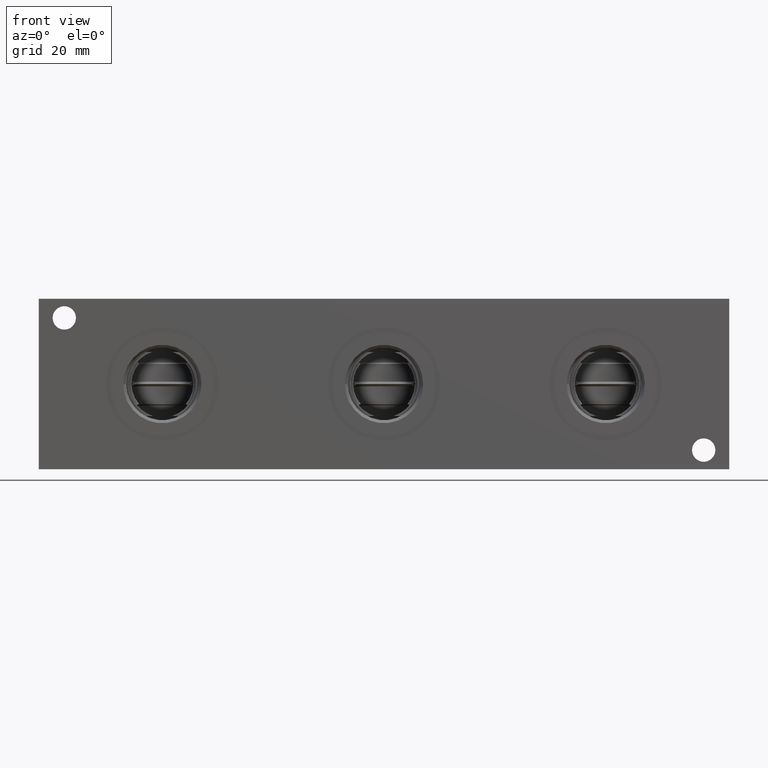
[diagram: clean part render]
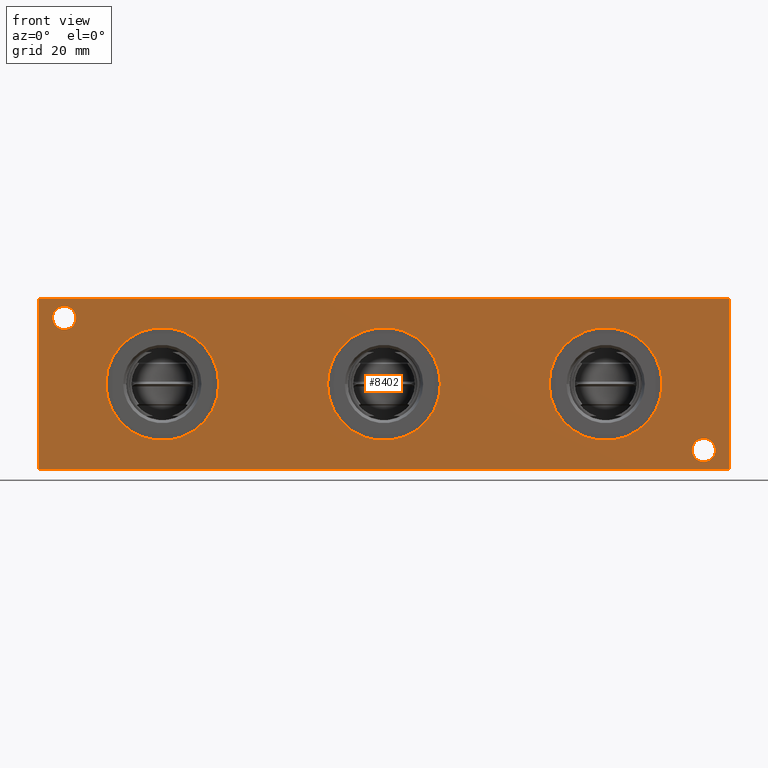
[diagram: same view with one face highlighted and labeled with its STEP entity id]
A machine part, front view. The second image highlights one B-rep face of the part: STEP entity #8402.
In plain terms, the highlighted planar face has unit normal (0, -1, 0).
Its self-contained STEP definition (entity closure, byte-faithful):
#240=CIRCLE('',#8802,21.0185);
#241=CIRCLE('',#8803,21.0185);
#260=CIRCLE('',#8832,21.0185);
#261=CIRCLE('',#8833,21.0185);
#290=CIRCLE('',#8886,4.3688);
#291=CIRCLE('',#8887,4.3688);
#293=CIRCLE('',#8895,4.3688);
#294=CIRCLE('',#8896,4.3688);
#311=CIRCLE('',#8936,21.0185);
#312=CIRCLE('',#8937,21.0185);
#375=FACE_BOUND('',#1611,.T.);
#376=FACE_BOUND('',#1612,.T.);
#377=FACE_BOUND('',#1613,.T.);
#378=FACE_BOUND('',#1614,.T.);
#379=FACE_BOUND('',#1615,.T.);
#1134=FACE_OUTER_BOUND('',#1610,.T.);
#1610=EDGE_LOOP('',(#7396,#7397,#7398,#7399));
#1611=EDGE_LOOP('',(#7400,#7401));
#1612=EDGE_LOOP('',(#7402,#7403));
#1613=EDGE_LOOP('',(#7404,#7405));
#1614=EDGE_LOOP('',(#7406,#7407));
#1615=EDGE_LOOP('',(#7408,#7409));
#1908=LINE('',#12908,#2649);
#2357=LINE('',#14576,#3098);
#2362=LINE('',#14585,#3103);
#2363=LINE('',#14587,#3104);
#2649=VECTOR('',#9421,10.);
#3098=VECTOR('',#10828,10.);
#3103=VECTOR('',#10837,10.);
#3104=VECTOR('',#10840,10.);
#3411=VERTEX_POINT('',#12906);
#3412=VERTEX_POINT('',#12907);
#3786=VERTEX_POINT('',#14239);
#3787=VERTEX_POINT('',#14240);
#3806=VERTEX_POINT('',#14297);
#3807=VERTEX_POINT('',#14298);
#3834=VERTEX_POINT('',#14399);
#3835=VERTEX_POINT('',#14400);
#3839=VERTEX_POINT('',#14415);
#3840=VERTEX_POINT('',#14416);
#3853=VERTEX_POINT('',#14501);
#3854=VERTEX_POINT('',#14502);
#3876=VERTEX_POINT('',#14574);
#3878=VERTEX_POINT('',#14583);
#4338=EDGE_CURVE('',#3411,#3412,#1908,.T.);
#4898=EDGE_CURVE('',#3786,#3787,#240,.T.);
#4899=EDGE_CURVE('',#3787,#3786,#241,.T.);
#4926=EDGE_CURVE('',#3806,#3807,#260,.T.);
#4927=EDGE_CURVE('',#3807,#3806,#261,.T.);
#4974=EDGE_CURVE('',#3834,#3835,#290,.T.);
#4975=EDGE_CURVE('',#3835,#3834,#291,.T.);
#4983=EDGE_CURVE('',#3839,#3840,#293,.T.);
#4984=EDGE_CURVE('',#3840,#3839,#294,.T.);
#5018=EDGE_CURVE('',#3853,#3854,#311,.T.);
#5019=EDGE_CURVE('',#3854,#3853,#312,.T.);
#5054=EDGE_CURVE('',#3876,#3411,#2357,.T.);
#5059=EDGE_CURVE('',#3878,#3412,#2362,.T.);
#5060=EDGE_CURVE('',#3876,#3878,#2363,.T.);
#7396=ORIENTED_EDGE('',*,*,#5060,.T.);
#7397=ORIENTED_EDGE('',*,*,#5059,.T.);
#7398=ORIENTED_EDGE('',*,*,#4338,.F.);
#7399=ORIENTED_EDGE('',*,*,#5054,.F.);
#7400=ORIENTED_EDGE('',*,*,#4898,.T.);
#7401=ORIENTED_EDGE('',*,*,#4899,.T.);
#7402=ORIENTED_EDGE('',*,*,#4926,.T.);
#7403=ORIENTED_EDGE('',*,*,#4927,.T.);
#7404=ORIENTED_EDGE('',*,*,#4974,.T.);
#7405=ORIENTED_EDGE('',*,*,#4975,.T.);
#7406=ORIENTED_EDGE('',*,*,#4983,.T.);
#7407=ORIENTED_EDGE('',*,*,#4984,.T.);
#7408=ORIENTED_EDGE('',*,*,#5018,.T.);
#7409=ORIENTED_EDGE('',*,*,#5019,.T.);
#7662=PLANE('',#8977);
#8402=ADVANCED_FACE('',(#1134,#375,#376,#377,#378,#379),#7662,.T.);
#8802=AXIS2_PLACEMENT_3D('',#14241,#10439,#10440);
#8803=AXIS2_PLACEMENT_3D('',#14242,#10441,#10442);
#8832=AXIS2_PLACEMENT_3D('',#14299,#10507,#10508);
#8833=AXIS2_PLACEMENT_3D('',#14300,#10509,#10510);
#8886=AXIS2_PLACEMENT_3D('',#14401,#10627,#10628);
#8887=AXIS2_PLACEMENT_3D('',#14402,#10629,#10630);
#8895=AXIS2_PLACEMENT_3D('',#14417,#10647,#10648);
#8896=AXIS2_PLACEMENT_3D('',#14418,#10649,#10650);
#8936=AXIS2_PLACEMENT_3D('',#14503,#10738,#10739);
#8937=AXIS2_PLACEMENT_3D('',#14504,#10740,#10741);
#8977=AXIS2_PLACEMENT_3D('',#14586,#10838,#10839);
#9421=DIRECTION('',(1.,0.,0.));
#10439=DIRECTION('center_axis',(0.,1.,0.));
#10440=DIRECTION('ref_axis',(1.,0.,0.));
#10441=DIRECTION('center_axis',(0.,1.,0.));
#10442=DIRECTION('ref_axis',(1.,0.,0.));
#10507=DIRECTION('center_axis',(0.,1.,0.));
#10508=DIRECTION('ref_axis',(1.,0.,0.));
#10509=DIRECTION('center_axis',(0.,1.,0.));
#10510=DIRECTION('ref_axis',(1.,0.,0.));
#10627=DIRECTION('center_axis',(0.,1.,0.));
#10628=DIRECTION('ref_axis',(1.,0.,0.));
#10629=DIRECTION('center_axis',(0.,1.,0.));
#10630=DIRECTION('ref_axis',(1.,0.,0.));
#10647=DIRECTION('center_axis',(0.,1.,0.));
#10648=DIRECTION('ref_axis',(1.,0.,0.));
#10649=DIRECTION('center_axis',(0.,1.,0.));
#10650=DIRECTION('ref_axis',(1.,0.,0.));
#10738=DIRECTION('center_axis',(0.,1.,0.));
#10739=DIRECTION('ref_axis',(1.,0.,0.));
#10740=DIRECTION('center_axis',(0.,1.,0.));
#10741=DIRECTION('ref_axis',(1.,0.,0.));
#10828=DIRECTION('',(0.,0.,1.));
#10837=DIRECTION('',(0.,0.,1.));
#10838=DIRECTION('center_axis',(0.,-1.,0.));
#10839=DIRECTION('ref_axis',(1.,0.,0.));
#10840=DIRECTION('',(1.,0.,0.));
#12906=CARTESIAN_POINT('',(0.,0.,63.5));
#12907=CARTESIAN_POINT('',(257.175,0.,63.5));
#12908=CARTESIAN_POINT('',(0.,0.,63.5));
#14239=CARTESIAN_POINT('',(232.1433,0.,31.75));
#14240=CARTESIAN_POINT('',(190.1063,0.,31.75));
#14241=CARTESIAN_POINT('Origin',(211.1248,0.,31.75));
#14242=CARTESIAN_POINT('Origin',(211.1248,0.,31.75));
#14297=CARTESIAN_POINT('',(149.5933,0.,31.75));
#14298=CARTESIAN_POINT('',(107.5563,0.,31.75));
#14299=CARTESIAN_POINT('Origin',(128.5748,0.,31.75));
#14300=CARTESIAN_POINT('Origin',(128.5748,0.,31.75));
#14399=CARTESIAN_POINT('',(13.8938,0.,56.3626));
#14400=CARTESIAN_POINT('',(5.1562,0.,56.3626));
#14401=CARTESIAN_POINT('Origin',(9.525,0.,56.3626));
#14402=CARTESIAN_POINT('Origin',(9.525,0.,56.3626));
#14415=CARTESIAN_POINT('',(252.0188,0.,7.1374));
#14416=CARTESIAN_POINT('',(243.2812,0.,7.1374));
#14417=CARTESIAN_POINT('Origin',(247.65,0.,7.1374));
#14418=CARTESIAN_POINT('Origin',(247.65,0.,7.1374));
#14501=CARTESIAN_POINT('',(67.0433,0.,31.75));
#14502=CARTESIAN_POINT('',(25.0063,0.,31.75));
#14503=CARTESIAN_POINT('Origin',(46.0248,0.,31.75));
#14504=CARTESIAN_POINT('Origin',(46.0248,0.,31.75));
#14574=CARTESIAN_POINT('',(0.,0.,0.));
#14576=CARTESIAN_POINT('',(0.,0.,0.));
#14583=CARTESIAN_POINT('',(257.175,0.,0.));
#14585=CARTESIAN_POINT('',(257.175,0.,0.));
#14586=CARTESIAN_POINT('Origin',(0.,0.,0.));
#14587=CARTESIAN_POINT('',(0.,0.,0.));